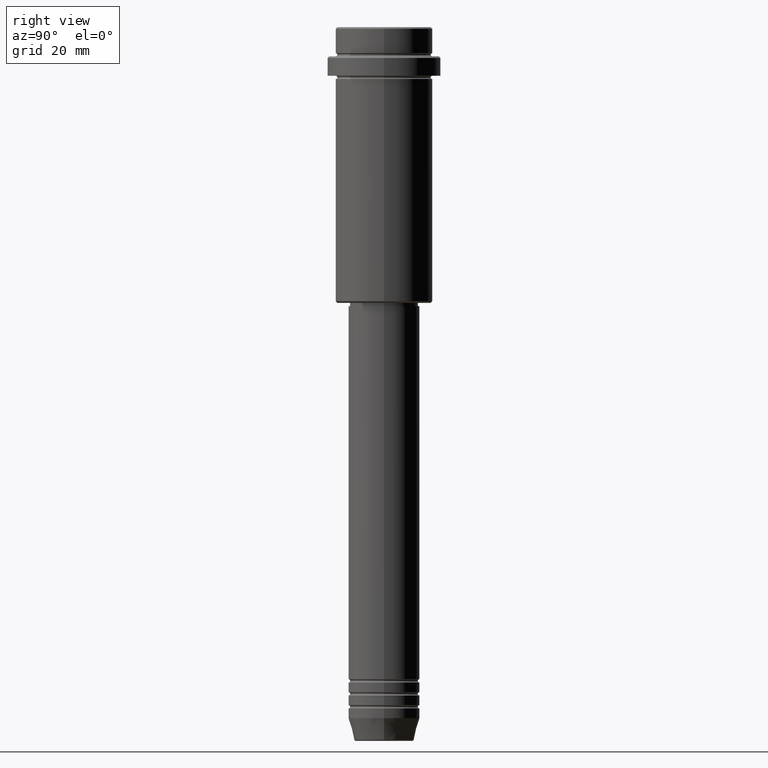
[diagram: clean part render]
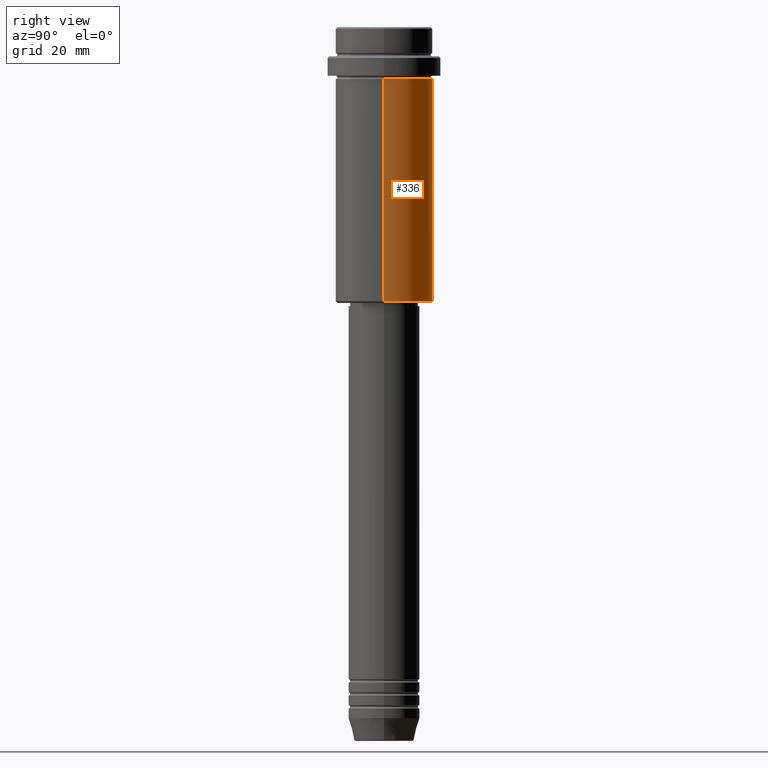
[diagram: same view with one face highlighted and labeled with its STEP entity id]
A machine part, right view. The second image highlights one B-rep face of the part: STEP entity #336.
In plain terms, the highlighted cylindrical surface (partial cylindrical patch) has radius 15 mm, axis along (-0, -0, 1).
Its self-contained STEP definition (entity closure, byte-faithful):
#34 = EDGE_CURVE ( 'NONE', #1042, #827, #623, .T. ) ;
#37 = CARTESIAN_POINT ( 'NONE',  ( -15.00000000000000000, 1.836970198721029589E-15, 0.000000000000000000 ) ) ;
#56 = LINE ( 'NONE', #37, #918 ) ;
#150 = DIRECTION ( 'NONE',  ( -0.000000000000000000, -0.000000000000000000, 1.000000000000000000 ) ) ;
#217 = CARTESIAN_POINT ( 'NONE',  ( -15.00000000000000000, 1.836970198721029589E-15, -84.50000000000002842 ) ) ;
#260 = CIRCLE ( 'NONE', #1050, 15.00000000000000178 ) ;
#295 = DIRECTION ( 'NONE',  ( -0.000000000000000000, -0.000000000000000000, 1.000000000000000000 ) ) ;
#322 = DIRECTION ( 'NONE',  ( -0.000000000000000000, -0.000000000000000000, 1.000000000000000000 ) ) ;
#336 = ADVANCED_FACE ( 'NONE', ( #458 ), #688, .T. ) ;
#338 = DIRECTION ( 'NONE',  ( 1.000000000000000000, 0.000000000000000000, 0.000000000000000000 ) ) ;
#376 = ORIENTED_EDGE ( 'NONE', *, *, #887, .F. ) ;
#458 = FACE_OUTER_BOUND ( 'NONE', #575, .T. ) ;
#462 = VECTOR ( 'NONE', #322, 1000.000000000000000 ) ;
#575 = EDGE_LOOP ( 'NONE', ( #1057, #880, #1257, #376 ) ) ;
#587 = VERTEX_POINT ( 'NONE', #1187 ) ;
#590 = CARTESIAN_POINT ( 'NONE',  ( 0.000000000000000000, 0.000000000000000000, 0.000000000000000000 ) ) ;
#623 = CIRCLE ( 'NONE', #1019, 15.00000000000000000 ) ;
#654 = EDGE_CURVE ( 'NONE', #827, #587, #56, .T. ) ;
#671 = VERTEX_POINT ( 'NONE', #1109 ) ;
#688 = CYLINDRICAL_SURFACE ( 'NONE', #936, 15.00000000000000000 ) ;
#827 = VERTEX_POINT ( 'NONE', #217 ) ;
#854 = LINE ( 'NONE', #1289, #462 ) ;
#880 = ORIENTED_EDGE ( 'NONE', *, *, #654, .T. ) ;
#887 = EDGE_CURVE ( 'NONE', #1042, #671, #854, .T. ) ;
#896 = DIRECTION ( 'NONE',  ( -0.000000000000000000, -0.000000000000000000, 1.000000000000000000 ) ) ;
#918 = VECTOR ( 'NONE', #1227, 1000.000000000000000 ) ;
#936 = AXIS2_PLACEMENT_3D ( 'NONE', #590, #896, #1101 ) ;
#980 = EDGE_CURVE ( 'NONE', #671, #587, #260, .T. ) ;
#1011 = CARTESIAN_POINT ( 'NONE',  ( 0.000000000000000000, 0.000000000000000000, -16.00000000000000000 ) ) ;
#1019 = AXIS2_PLACEMENT_3D ( 'NONE', #1377, #295, #1254 ) ;
#1042 = VERTEX_POINT ( 'NONE', #1095 ) ;
#1050 = AXIS2_PLACEMENT_3D ( 'NONE', #1011, #150, #338 ) ;
#1057 = ORIENTED_EDGE ( 'NONE', *, *, #34, .T. ) ;
#1095 = CARTESIAN_POINT ( 'NONE',  ( 15.00000000000000000, 0.000000000000000000, -84.50000000000002842 ) ) ;
#1101 = DIRECTION ( 'NONE',  ( 1.000000000000000000, 0.000000000000000000, 0.000000000000000000 ) ) ;
#1109 = CARTESIAN_POINT ( 'NONE',  ( 15.00000000000000178, 0.000000000000000000, -16.00000000000000000 ) ) ;
#1187 = CARTESIAN_POINT ( 'NONE',  ( -15.00000000000000355, 1.836970198721029983E-15, -16.00000000000000000 ) ) ;
#1227 = DIRECTION ( 'NONE',  ( -0.000000000000000000, -0.000000000000000000, 1.000000000000000000 ) ) ;
#1254 = DIRECTION ( 'NONE',  ( -1.000000000000000000, 0.000000000000000000, 0.000000000000000000 ) ) ;
#1257 = ORIENTED_EDGE ( 'NONE', *, *, #980, .F. ) ;
#1289 = CARTESIAN_POINT ( 'NONE',  ( 15.00000000000000000, 0.000000000000000000, 0.000000000000000000 ) ) ;
#1377 = CARTESIAN_POINT ( 'NONE',  ( 0.000000000000000000, 0.000000000000000000, -84.50000000000002842 ) ) ;